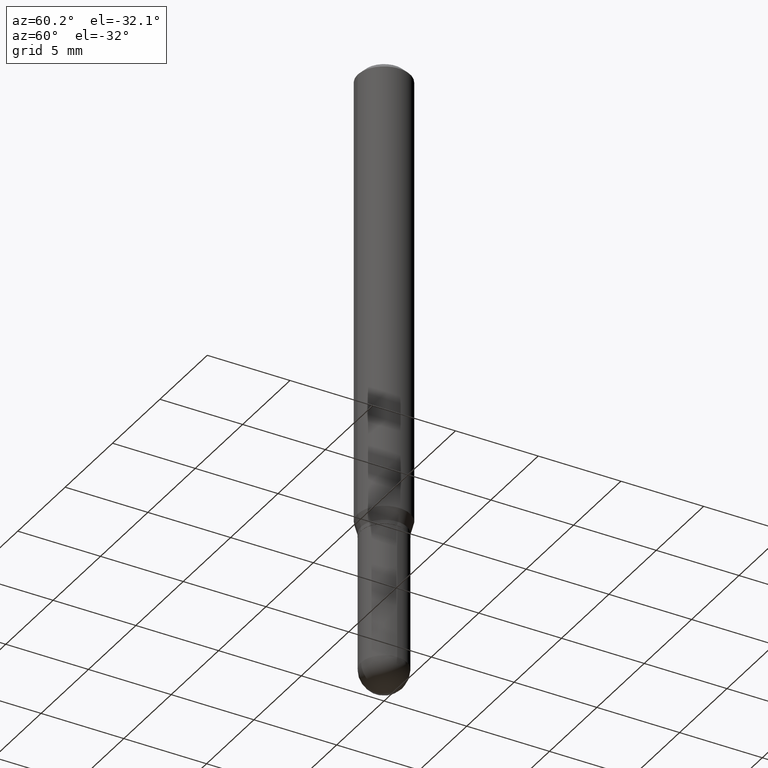
[diagram: clean part render]
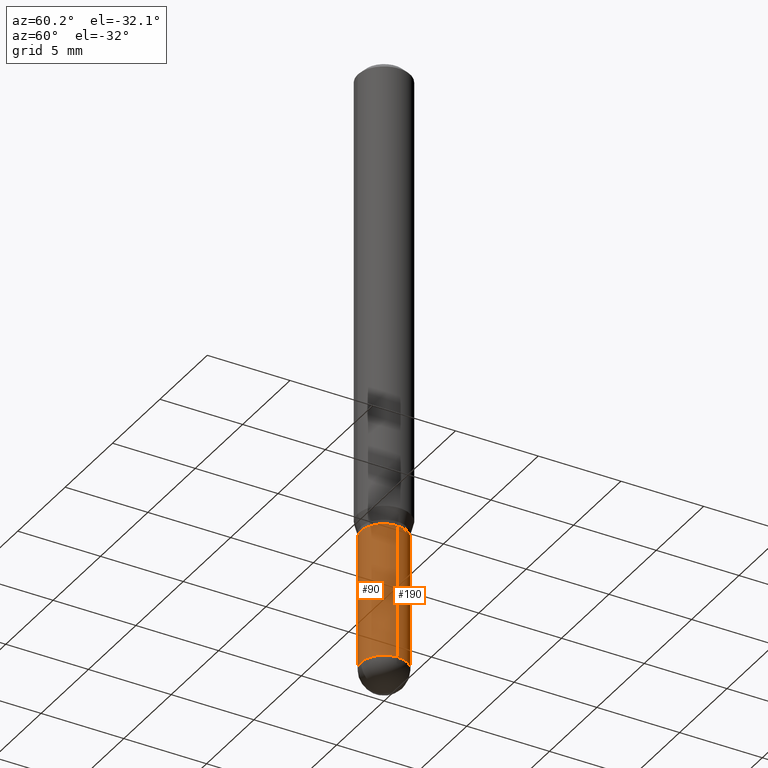
[diagram: same view with one multi-face feature highlighted, each face labeled with its STEP entity id]
A machine part, auxiliary view. The highlighted faces form ONE feature: a constant-radius fillet chain: 2 tangent blend faces with common blend radius 1.3894 mm. The faces share edges in the B-rep.
Their STEP definitions:
[1] entity #90 (Cylinder):
#4 = CARTESIAN_POINT ( 'NONE',  ( -0.05469999999999999862, 3.886668764607747919E-16, -2.690657494369433708E-30 ) ) ;
#8 = DIRECTION ( 'NONE',  ( -2.445468806185136877E-29, 3.491481338843145188E-15, 1.000000000000000000 ) ) ;
#15 = VERTEX_POINT ( 'NONE', #42 ) ;
#21 = VERTEX_POINT ( 'NONE', #205 ) ;
#26 = CARTESIAN_POINT ( 'NONE',  ( 3.534436065579377749E-29, -5.046237979029997798E-15, -1.445300000000000029 ) ) ;
#27 = EDGE_CURVE ( 'NONE', #461, #396, #512, .T. ) ;
#38 = CARTESIAN_POINT ( 'NONE',  ( -0.05469999999999999862, -4.098410366153493916E-15, -1.125000000000000222 ) ) ;
#42 = CARTESIAN_POINT ( 'NONE',  ( -3.886668764607396383E-16, -0.05470000000000508483, -1.445299999999999807 ) ) ;
#48 = DIRECTION ( 'NONE',  ( -2.445468806185136597E-29, 3.491481338843145583E-15, 1.000000000000000000 ) ) ;
#50 = DIRECTION ( 'NONE',  ( 1.000000000000000000, -6.982962677686259611E-15, 0.000000000000000000 ) ) ;
#79 = CARTESIAN_POINT ( 'NONE',  ( -0.05470000000000000556, -4.098410366153493916E-15, -1.445300000000000029 ) ) ;
#90 = ADVANCED_FACE ( 'NONE', ( #171 ), #214, .T. ) ;
#101 = EDGE_LOOP ( 'NONE', ( #120, #456, #217, #247, #346 ) ) ;
#120 = ORIENTED_EDGE ( 'NONE', *, *, #27, .F. ) ;
#136 = CIRCLE ( 'NONE', #405, 0.05469999999999999862 ) ;
#149 = DIRECTION ( 'NONE',  ( -2.445468806185136597E-29, 3.491481338843145583E-15, 1.000000000000000000 ) ) ;
#166 = EDGE_CURVE ( 'NONE', #15, #292, #271, .T. ) ;
#171 = FACE_OUTER_BOUND ( 'NONE', #101, .T. ) ;
#181 = VECTOR ( 'NONE', #331, 39.37007874015748143 ) ;
#205 = CARTESIAN_POINT ( 'NONE',  ( 0.05469999999999999862, -4.309884564667978405E-15, -1.125000000000000222 ) ) ;
#207 = DIRECTION ( 'NONE',  ( 1.000000000000000000, -6.982962677686266711E-15, 4.876176775795935793E-29 ) ) ;
#213 = AXIS2_PLACEMENT_3D ( 'NONE', #26, #351, #350 ) ;
#214 = CYLINDRICAL_SURFACE ( 'NONE', #432, 0.05469999999999999862 ) ;
#217 = ORIENTED_EDGE ( 'NONE', *, *, #166, .T. ) ;
#220 = EDGE_CURVE ( 'NONE', #292, #21, #289, .T. ) ;
#225 = CARTESIAN_POINT ( 'NONE',  ( 0.05470000000000000556, -4.869045301083706902E-15, -1.445300000000000029 ) ) ;
#247 = ORIENTED_EDGE ( 'NONE', *, *, #220, .T. ) ;
#250 = CARTESIAN_POINT ( 'NONE',  ( 0.000000000000000000, 0.000000000000000000, 0.000000000000000000 ) ) ;
#264 = CARTESIAN_POINT ( 'NONE',  ( 2.751152406958279232E-29, -3.927916506198539224E-15, -1.125000000000000222 ) ) ;
#271 = CIRCLE ( 'NONE', #503, 0.05470000000000000556 ) ;
#277 = VECTOR ( 'NONE', #8, 39.37007874015748143 ) ;
#289 = LINE ( 'NONE', #448, #181 ) ;
#292 = VERTEX_POINT ( 'NONE', #225 ) ;
#331 = DIRECTION ( 'NONE',  ( -2.445468806185136877E-29, 3.491481338843145188E-15, 1.000000000000000000 ) ) ;
#344 = EDGE_CURVE ( 'NONE', #396, #21, #136, .T. ) ;
#346 = ORIENTED_EDGE ( 'NONE', *, *, #344, .F. ) ;
#348 = EDGE_CURVE ( 'NONE', #461, #15, #361, .T. ) ;
#350 = DIRECTION ( 'NONE',  ( 1.000000000000000000, -6.982962677686259611E-15, 0.000000000000000000 ) ) ;
#351 = DIRECTION ( 'NONE',  ( -2.445468806185136597E-29, 3.491481338843145583E-15, 1.000000000000000000 ) ) ;
#361 = CIRCLE ( 'NONE', #213, 0.05470000000000000556 ) ;
#378 = DIRECTION ( 'NONE',  ( 1.000000000000000000, -6.982962677686269866E-15, 0.000000000000000000 ) ) ;
#396 = VERTEX_POINT ( 'NONE', #38 ) ;
#401 = CARTESIAN_POINT ( 'NONE',  ( 3.534436065579377749E-29, -5.046237979029997798E-15, -1.445300000000000029 ) ) ;
#405 = AXIS2_PLACEMENT_3D ( 'NONE', #264, #149, #378 ) ;
#432 = AXIS2_PLACEMENT_3D ( 'NONE', #250, #48, #207 ) ;
#447 = DIRECTION ( 'NONE',  ( -2.445468806185136597E-29, 3.491481338843145583E-15, 1.000000000000000000 ) ) ;
#448 = CARTESIAN_POINT ( 'NONE',  ( 0.05469999999999999862, -3.819680584694387859E-16, 2.667268696360376954E-30 ) ) ;
#456 = ORIENTED_EDGE ( 'NONE', *, *, #348, .T. ) ;
#461 = VERTEX_POINT ( 'NONE', #79 ) ;
#503 = AXIS2_PLACEMENT_3D ( 'NONE', #401, #447, #50 ) ;
#512 = LINE ( 'NONE', #4, #277 ) ;
[2] entity #190 (Cylinder):
#4 = CARTESIAN_POINT ( 'NONE',  ( -0.05469999999999999862, 3.886668764607747919E-16, -2.690657494369433708E-30 ) ) ;
#8 = DIRECTION ( 'NONE',  ( -2.445468806185136877E-29, 3.491481338843145188E-15, 1.000000000000000000 ) ) ;
#12 = DIRECTION ( 'NONE',  ( -2.445468806185136597E-29, 3.491481338843145583E-15, 1.000000000000000000 ) ) ;
#21 = VERTEX_POINT ( 'NONE', #205 ) ;
#24 = EDGE_CURVE ( 'NONE', #453, #461, #462, .T. ) ;
#25 = DIRECTION ( 'NONE',  ( -2.445468806185136597E-29, 3.491481338843145583E-15, 1.000000000000000000 ) ) ;
#27 = EDGE_CURVE ( 'NONE', #461, #396, #512, .T. ) ;
#35 = DIRECTION ( 'NONE',  ( 1.000000000000000000, -6.982962677686259611E-15, 0.000000000000000000 ) ) ;
#38 = CARTESIAN_POINT ( 'NONE',  ( -0.05469999999999999862, -4.098410366153493916E-15, -1.125000000000000222 ) ) ;
#79 = CARTESIAN_POINT ( 'NONE',  ( -0.05470000000000000556, -4.098410366153493916E-15, -1.445300000000000029 ) ) ;
#102 = CARTESIAN_POINT ( 'NONE',  ( 3.534436065579377749E-29, -5.046237979029997798E-15, -1.445300000000000029 ) ) ;
#103 = AXIS2_PLACEMENT_3D ( 'NONE', #176, #12, #329 ) ;
#113 = CARTESIAN_POINT ( 'NONE',  ( 3.819680584694743340E-16, 0.05469999999999498180, -1.445300000000000251 ) ) ;
#129 = CYLINDRICAL_SURFACE ( 'NONE', #103, 0.05469999999999999862 ) ;
#134 = AXIS2_PLACEMENT_3D ( 'NONE', #200, #363, #35 ) ;
#146 = AXIS2_PLACEMENT_3D ( 'NONE', #102, #25, #469 ) ;
#156 = ORIENTED_EDGE ( 'NONE', *, *, #295, .T. ) ;
#174 = FACE_OUTER_BOUND ( 'NONE', #481, .T. ) ;
#176 = CARTESIAN_POINT ( 'NONE',  ( 0.000000000000000000, 0.000000000000000000, 0.000000000000000000 ) ) ;
#181 = VECTOR ( 'NONE', #331, 39.37007874015748143 ) ;
#190 = ADVANCED_FACE ( 'NONE', ( #174 ), #129, .T. ) ;
#200 = CARTESIAN_POINT ( 'NONE',  ( 3.534436065579377749E-29, -5.046237979029997798E-15, -1.445300000000000029 ) ) ;
#205 = CARTESIAN_POINT ( 'NONE',  ( 0.05469999999999999862, -4.309884564667978405E-15, -1.125000000000000222 ) ) ;
#220 = EDGE_CURVE ( 'NONE', #292, #21, #289, .T. ) ;
#225 = CARTESIAN_POINT ( 'NONE',  ( 0.05470000000000000556, -4.869045301083706902E-15, -1.445300000000000029 ) ) ;
#233 = ORIENTED_EDGE ( 'NONE', *, *, #24, .T. ) ;
#234 = EDGE_CURVE ( 'NONE', #21, #396, #475, .T. ) ;
#237 = AXIS2_PLACEMENT_3D ( 'NONE', #496, #296, #299 ) ;
#277 = VECTOR ( 'NONE', #8, 39.37007874015748143 ) ;
#283 = ORIENTED_EDGE ( 'NONE', *, *, #27, .T. ) ;
#289 = LINE ( 'NONE', #448, #181 ) ;
#292 = VERTEX_POINT ( 'NONE', #225 ) ;
#295 = EDGE_CURVE ( 'NONE', #292, #453, #485, .T. ) ;
#296 = DIRECTION ( 'NONE',  ( -2.445468806185136597E-29, 3.491481338843145583E-15, 1.000000000000000000 ) ) ;
#299 = DIRECTION ( 'NONE',  ( 1.000000000000000000, -6.982962677686269866E-15, 0.000000000000000000 ) ) ;
#329 = DIRECTION ( 'NONE',  ( 1.000000000000000000, -6.982962677686266711E-15, 4.876176775795935793E-29 ) ) ;
#331 = DIRECTION ( 'NONE',  ( -2.445468806185136877E-29, 3.491481338843145188E-15, 1.000000000000000000 ) ) ;
#363 = DIRECTION ( 'NONE',  ( -2.445468806185136597E-29, 3.491481338843145583E-15, 1.000000000000000000 ) ) ;
#396 = VERTEX_POINT ( 'NONE', #38 ) ;
#421 = ORIENTED_EDGE ( 'NONE', *, *, #234, .F. ) ;
#443 = ORIENTED_EDGE ( 'NONE', *, *, #220, .F. ) ;
#448 = CARTESIAN_POINT ( 'NONE',  ( 0.05469999999999999862, -3.819680584694387859E-16, 2.667268696360376954E-30 ) ) ;
#453 = VERTEX_POINT ( 'NONE', #113 ) ;
#461 = VERTEX_POINT ( 'NONE', #79 ) ;
#462 = CIRCLE ( 'NONE', #134, 0.05470000000000000556 ) ;
#469 = DIRECTION ( 'NONE',  ( 1.000000000000000000, -6.982962677686259611E-15, 0.000000000000000000 ) ) ;
#475 = CIRCLE ( 'NONE', #237, 0.05469999999999999862 ) ;
#481 = EDGE_LOOP ( 'NONE', ( #233, #283, #421, #443, #156 ) ) ;
#485 = CIRCLE ( 'NONE', #146, 0.05470000000000000556 ) ;
#496 = CARTESIAN_POINT ( 'NONE',  ( 2.751152406958279232E-29, -3.927916506198539224E-15, -1.125000000000000222 ) ) ;
#512 = LINE ( 'NONE', #4, #277 ) ;